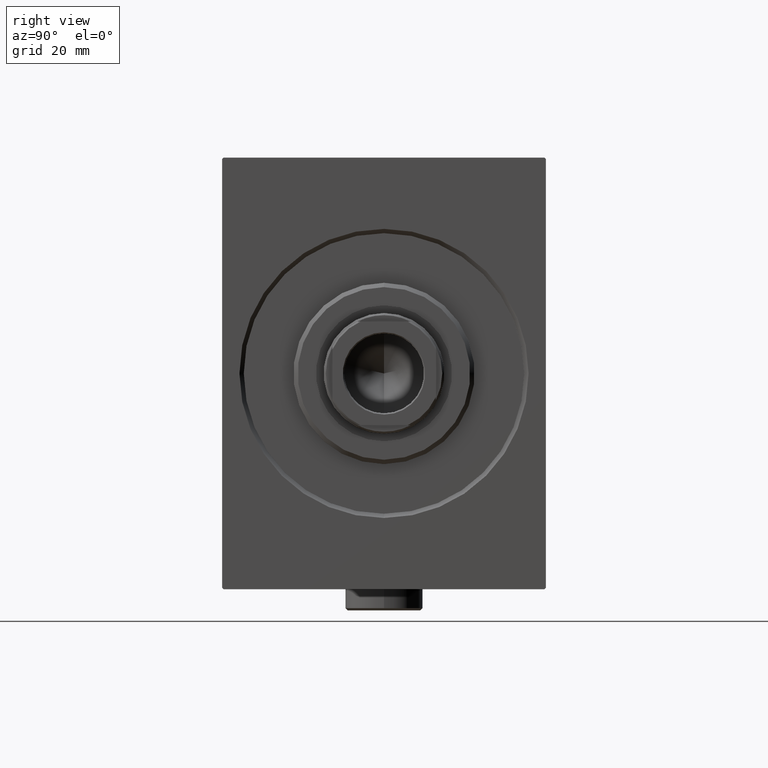
[diagram: clean part render]
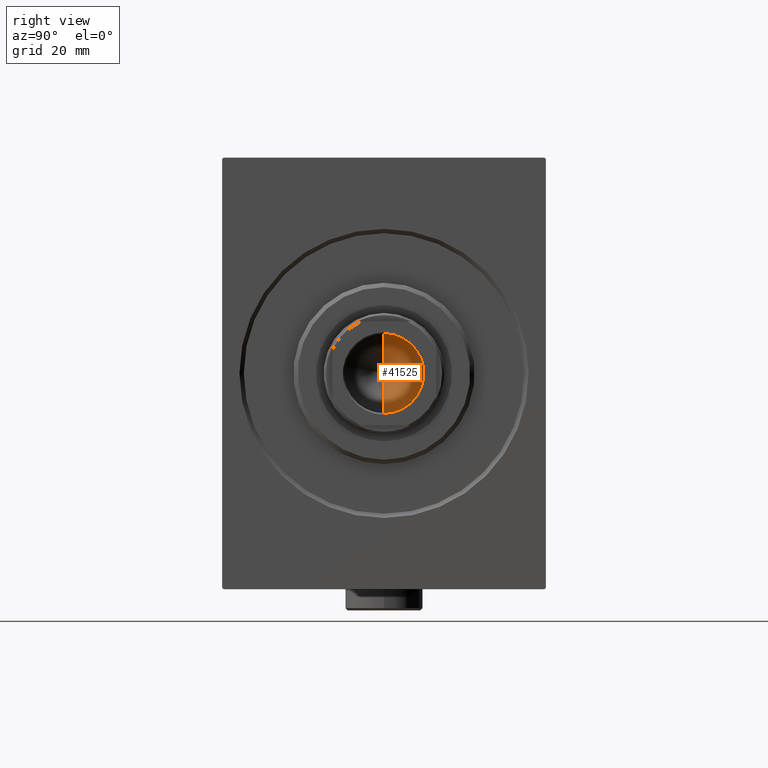
[diagram: same view with one face highlighted and labeled with its STEP entity id]
A machine part, right view. The second image highlights one B-rep face of the part: STEP entity #41525.
In plain terms, the highlighted conical surface has half-angle 59 deg.
Its self-contained STEP definition (entity closure, byte-faithful):
#2377 = CARTESIAN_POINT ( 'NONE',  ( 9.249999999999994671, 0.000000000000000000, 71.00000000000001421 ) ) ;
#3151 = DIRECTION ( 'NONE',  ( -0.000000000000000000, -0.000000000000000000, 1.000000000000000000 ) ) ;
#4330 = EDGE_CURVE ( 'NONE', #39376, #18946, #24616, .T. ) ;
#5871 = ORIENTED_EDGE ( 'NONE', *, *, #4330, .T. ) ;
#6103 = CARTESIAN_POINT ( 'NONE',  ( -9.249999999999994671, 1.132798289211300909E-15, 71.00000000000001421 ) ) ;
#9662 = AXIS2_PLACEMENT_3D ( 'NONE', #13227, #26581, #29920 ) ;
#13227 = CARTESIAN_POINT ( 'NONE',  ( 0.000000000000000000, 0.000000000000000000, 71.00000000000001421 ) ) ;
#13652 = LINE ( 'NONE', #37249, #26580 ) ;
#14524 = EDGE_LOOP ( 'NONE', ( #16876, #40810, #5871 ) ) ;
#14756 = VECTOR ( 'NONE', #33406, 1000.000000000000000 ) ;
#16001 = VERTEX_POINT ( 'NONE', #38680 ) ;
#16876 = ORIENTED_EDGE ( 'NONE', *, *, #33377, .F. ) ;
#18946 = VERTEX_POINT ( 'NONE', #6103 ) ;
#24616 = CIRCLE ( 'NONE', #9662, 9.249999999999994671 ) ;
#26580 = VECTOR ( 'NONE', #43943, 1000.000000000000000 ) ;
#26581 = DIRECTION ( 'NONE',  ( -0.000000000000000000, -0.000000000000000000, 1.000000000000000000 ) ) ;
#29426 = EDGE_CURVE ( 'NONE', #16001, #39376, #13652, .T. ) ;
#29920 = DIRECTION ( 'NONE',  ( 1.000000000000000000, 0.000000000000000000, 0.000000000000000000 ) ) ;
#30095 = FACE_OUTER_BOUND ( 'NONE', #14524, .T. ) ;
#30530 = DIRECTION ( 'NONE',  ( 1.000000000000000000, 0.000000000000000000, 0.000000000000000000 ) ) ;
#33183 = CARTESIAN_POINT ( 'NONE',  ( -9.249999999999994671, 1.132798289211300909E-15, 71.00000000000001421 ) ) ;
#33377 = EDGE_CURVE ( 'NONE', #16001, #18946, #40069, .T. ) ;
#33406 = DIRECTION ( 'NONE',  ( -0.8571673007021113344, 1.049727191138617463E-16, 0.5150380749100558209 ) ) ;
#37249 = CARTESIAN_POINT ( 'NONE',  ( 9.249999999999994671, 0.000000000000000000, 71.00000000000001421 ) ) ;
#38680 = CARTESIAN_POINT ( 'NONE',  ( -6.793016015247754405E-15, 0.000000000000000000, 65.44203927399505005 ) ) ;
#39168 = AXIS2_PLACEMENT_3D ( 'NONE', #43686, #3151, #30530 ) ;
#39376 = VERTEX_POINT ( 'NONE', #2377 ) ;
#40069 = LINE ( 'NONE', #33183, #14756 ) ;
#40590 = CONICAL_SURFACE ( 'NONE', #39168, 9.249999999999994671, 1.029744258676652535 ) ;
#40810 = ORIENTED_EDGE ( 'NONE', *, *, #29426, .T. ) ;
#41525 = ADVANCED_FACE ( 'NONE', ( #30095 ), #40590, .F. ) ;
#43686 = CARTESIAN_POINT ( 'NONE',  ( 0.000000000000000000, 0.000000000000000000, 71.00000000000001421 ) ) ;
#43943 = DIRECTION ( 'NONE',  ( 0.8571673007021113344, 0.000000000000000000, 0.5150380749100558209 ) ) ;